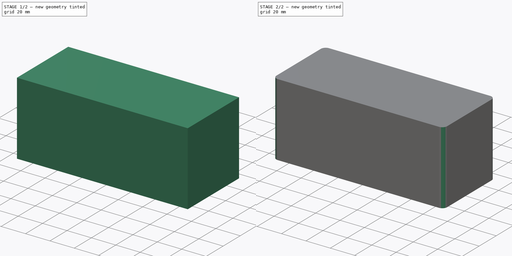
[diagram: build sequence overview — one tinted view per stage of 2, left to right]
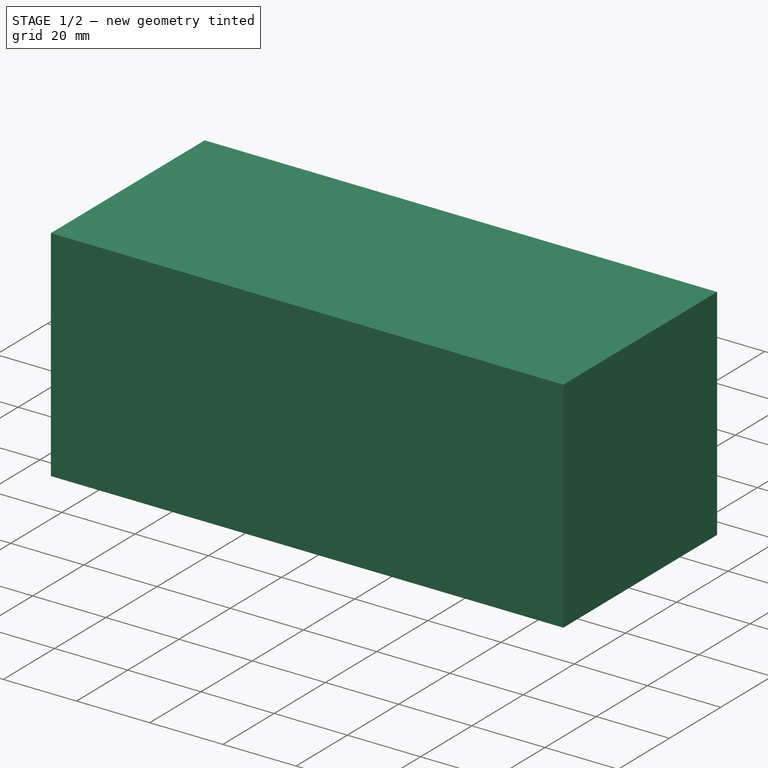
[diagram: stage 1 of 2 — iso view after this stage's code; geometry added in this stage tinted green]
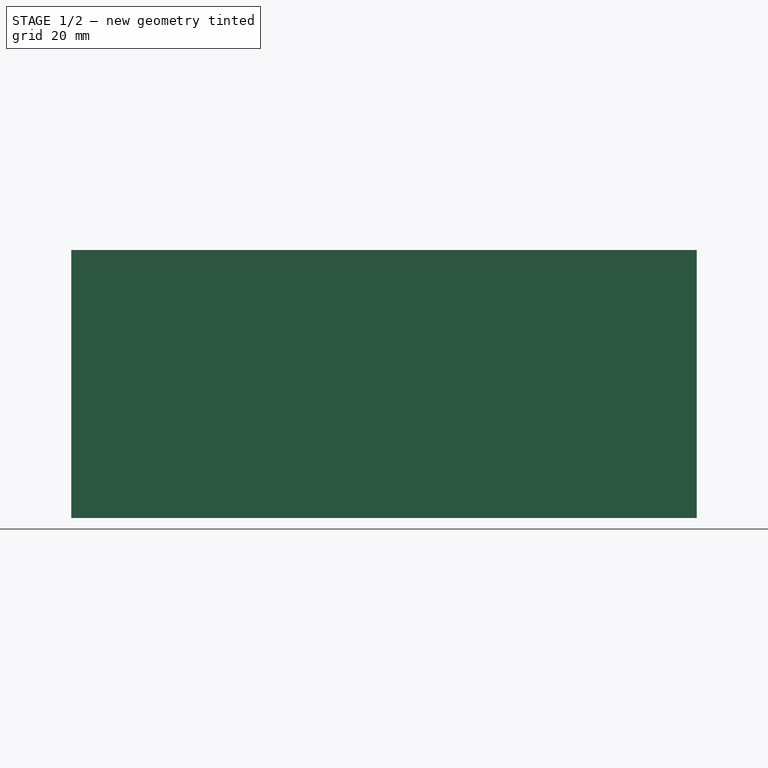
[diagram: stage 1 of 2 — front view after this stage's code; geometry added in this stage tinted green]
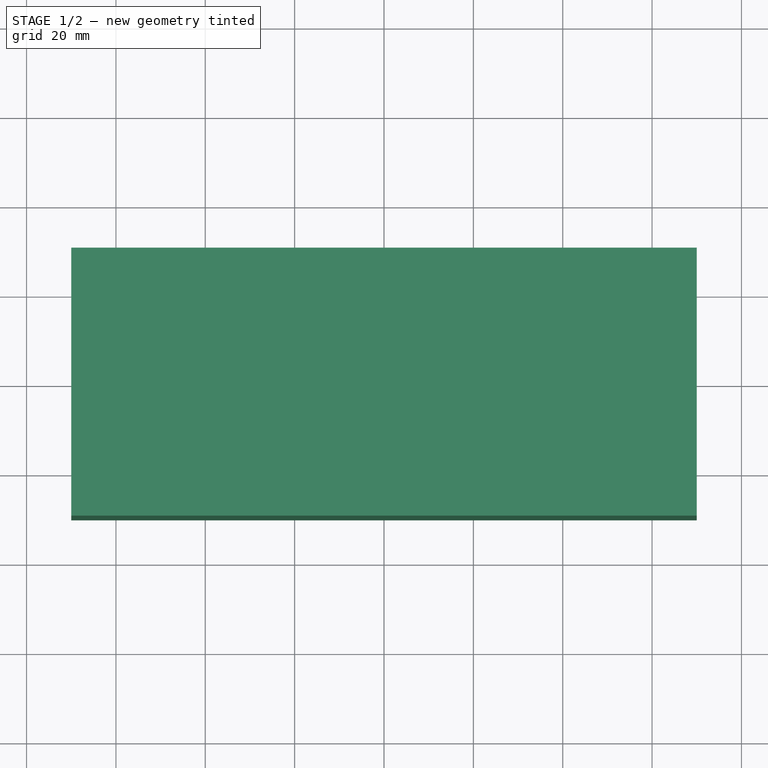
[diagram: stage 1 of 2 — top view after this stage's code; geometry added in this stage tinted green]
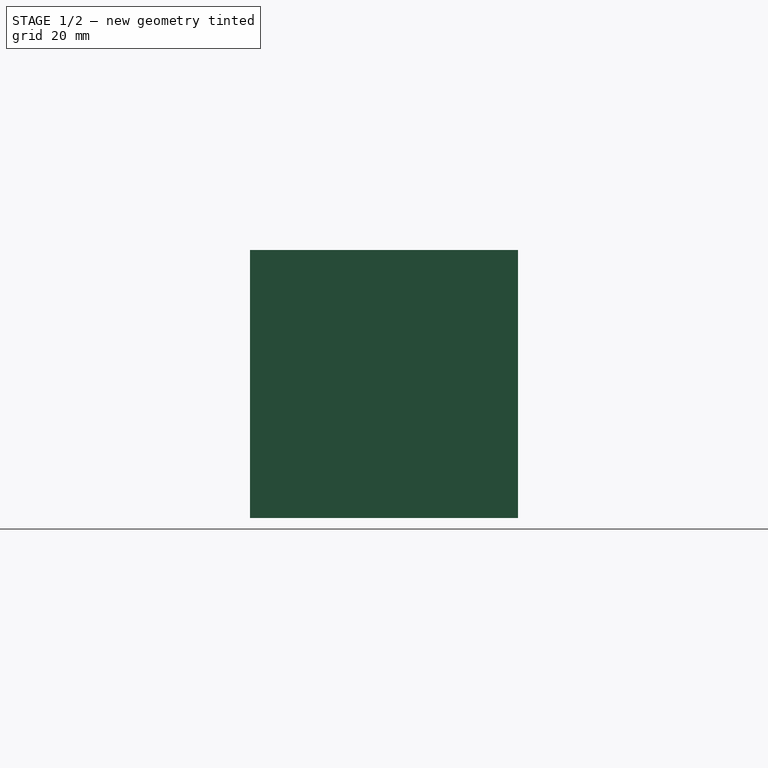
[diagram: stage 1 of 2 — right view after this stage's code; geometry added in this stage tinted green]
FCSTD DOCUMENT  (FreeCAD 0.21R33771 (Git))
Label: containers
License: All rights reserved
LicenseURL: https://en.wikipedia.org/wiki/All_rights_reserved
objects: Sketcher::SketchObject×2, PartDesign::Pad×1, PartDesign::Pocket×1, PartDesign::Fillet×1, PartDesign::Body×1
note: 9 computed .brp shape members not serialized (recipe doc carries the construction recipe); baked Part::Feature solids carry a one-line shape summary decoded from their .brp

FEATURE [Sketcher::SketchObject] Sketch
  FullyConstrained = true
  MapMode = 5
  Support = -> [XY_Plane]
  sketch-geometry (4):
    g0: LineSegment StartX=-70 StartY=30 StartZ=0 EndX=70 EndY=30 EndZ=0
    g1: LineSegment StartX=70 StartY=30 StartZ=0 EndX=70 EndY=-30 EndZ=0
    g2: LineSegment StartX=70 StartY=-30 StartZ=0 EndX=-70 EndY=-30 EndZ=0
    g3: LineSegment StartX=-70 StartY=-30 StartZ=0 EndX=-70 EndY=30 EndZ=0
  constraints (11):
    c: Coincident(g0,g1)
    c: Coincident(g1,g2)
    c: Coincident(g2,g3)
    c: Coincident(g3,g0)
    c: Horizontal(g0)
    c: Horizontal(g2)
    c: Vertical(g1)
    c: Vertical(g3)
    c: DistanceX(g0,g0) = 140
    c: DistanceY(g3,g3) = 60
    c: Symmetric(g2,g0,g-1)
FEATURE [PartDesign::Pad] Pad
  Direction = (0,0,1)
  Length = 60
  Length2 = 10
  Profile = -> Sketch
  ReferenceAxis = -> Sketch [N_Axis]
  Type = 0
FEATURE [Sketcher::SketchObject] Sketch001
  ExternalGeometry = -> [Pad]
  FullyConstrained = true
  MapMode = 5
  Support = -> [XY_Plane]
  sketch-geometry (12):
    g0: LineSegment StartX=-68 StartY=28 StartZ=0 EndX=-6 EndY=28 EndZ=0
    g1: LineSegment StartX=-6 StartY=28 StartZ=0 EndX=-6 EndY=-28 EndZ=0
    g2: LineSegment StartX=-6 StartY=-28 StartZ=0 EndX=-68 EndY=-28 EndZ=0
    g3: LineSegment StartX=-68 StartY=-28 StartZ=0 EndX=-68 EndY=28 EndZ=0
    g4: LineSegment StartX=-4 StartY=28 StartZ=0 EndX=26 EndY=28 EndZ=0
    g5: LineSegment StartX=26 StartY=28 StartZ=0 EndX=26 EndY=-28 EndZ=0
    g6: LineSegment StartX=26 StartY=-28 StartZ=0 EndX=-4 EndY=-28 EndZ=0
    g7: LineSegment StartX=-4 StartY=-28 StartZ=0 EndX=-4 EndY=28 EndZ=0
    g8: LineSegment StartX=28 StartY=28 StartZ=0 EndX=68 EndY=28 EndZ=0
    g9: LineSegment StartX=68 StartY=28 StartZ=0 EndX=68 EndY=-28 EndZ=0
    g10: LineSegment StartX=68 StartY=-28 StartZ=0 EndX=28 EndY=-28 EndZ=0
    g11: LineSegment StartX=28 StartY=-28 StartZ=0 EndX=28 EndY=28 EndZ=0
  constraints (36):
    c: Coincident(g0,g1)
    c: Coincident(g1,g2)
    c: Coincident(g2,g3)
    c: Coincident(g3,g0)
    c: Horizontal(g0)
    c: Horizontal(g2)
    c: Vertical(g1)
    c: Vertical(g3)
    c: Coincident(g4,g5)
    c: Coincident(g5,g6)
    c: Coincident(g6,g7)
    c: Coincident(g7,g4)
    c: Horizontal(g4)
    c: Horizontal(g6)
    c: Vertical(g5)
    c: Vertical(g7)
    c: Coincident(g8,g9)
    c: Coincident(g9,g10)
    c: Coincident(g10,g11)
    c: Coincident(g11,g8)
    c: Horizontal(g8)
    c: Horizontal(g10)
    c: Vertical(g9)
    c: Vertical(g11)
    c: DistanceY(g0,g-4) = 2
    c: DistanceX(g-5,g2) = 2
    c: DistanceY(g-5,g2) = 2
    c: DistanceX(g4,g4) = 30
    c: Horizontal(g0,g4)
    c: Horizontal(g4,g8)
    c: DistanceX(g0,g4) = 2
    c: DistanceX(g4,g8) = 2
    c: Horizontal(g1,g6)
    c: Horizontal(g6,g10)
    c: DistanceX(g8,g8) = 40
    c: DistanceX(g8,g-6) = 2
FEATURE [PartDesign::Pocket] Pocket
  BaseFeature = -> Pad
  Direction = (0,0,-1)
  Length = 57
  Length2 = 5
  Profile = -> Sketch001
  ReferenceAxis = -> Sketch001 [N_Axis]
  Reversed = true
  Type = 0
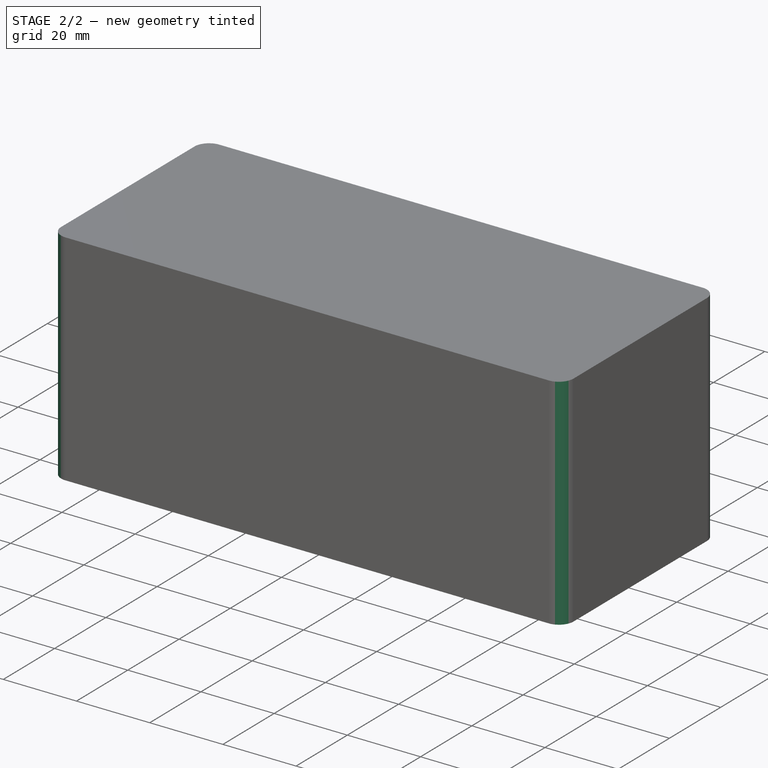
[diagram: stage 2 of 2 — iso view after this stage's code; geometry added in this stage tinted green]
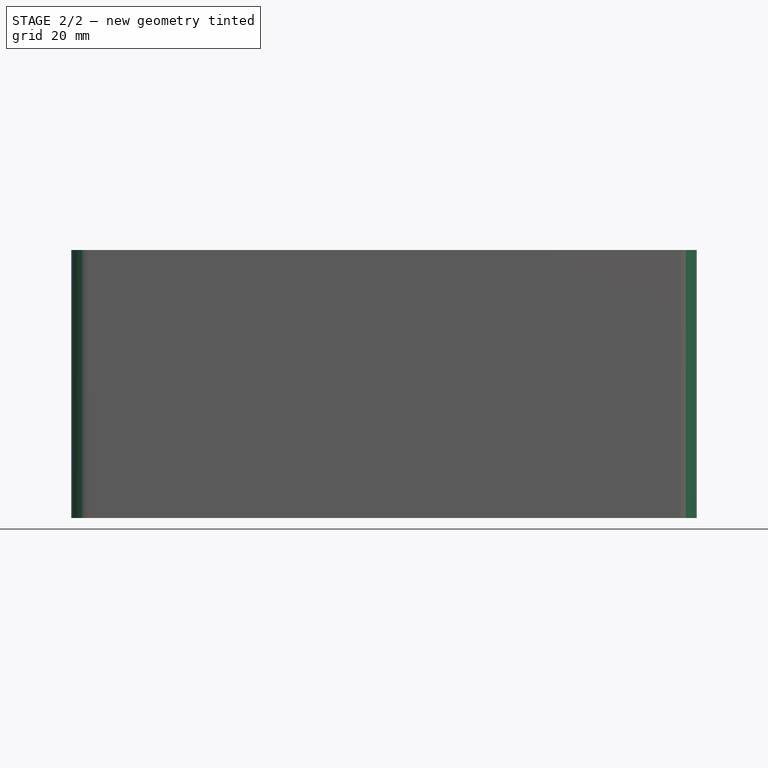
[diagram: stage 2 of 2 — front view after this stage's code; geometry added in this stage tinted green]
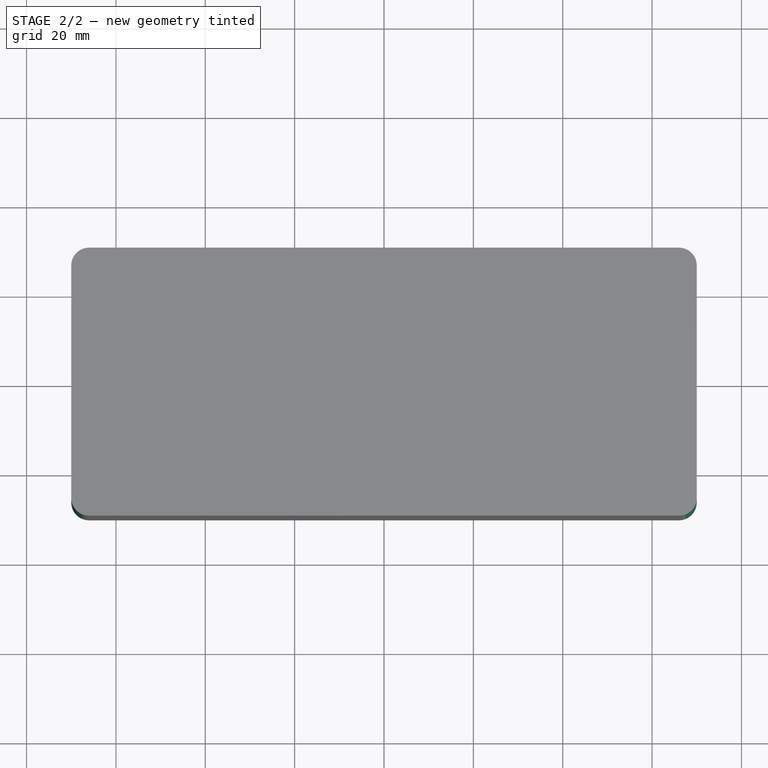
[diagram: stage 2 of 2 — top view after this stage's code; geometry added in this stage tinted green]
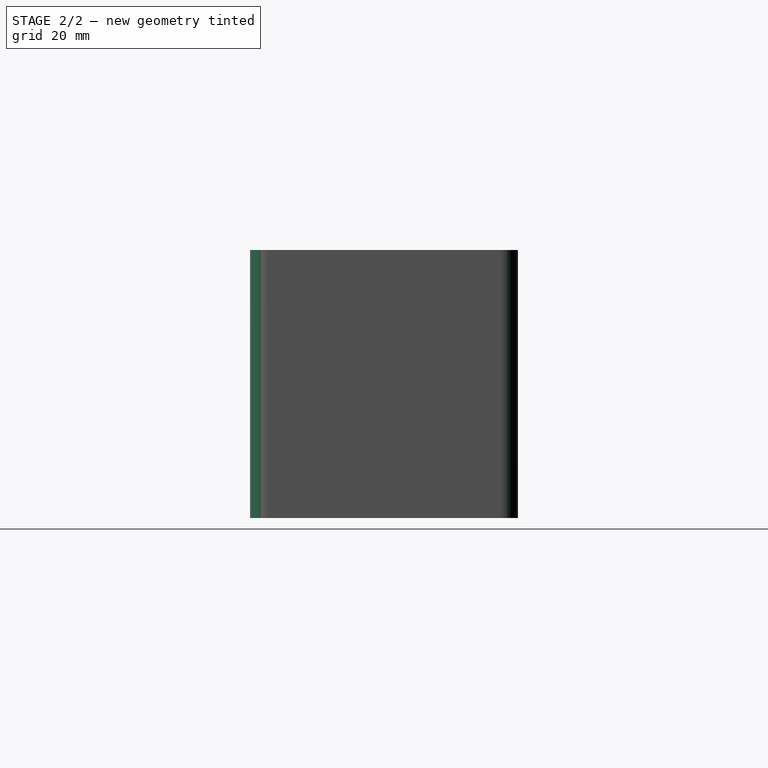
[diagram: stage 2 of 2 — right view after this stage's code; geometry added in this stage tinted green]
FEATURE [PartDesign::Fillet] Fillet
  Base = -> Pocket [Edge26,Edge25,Edge30,Edge38,Edge46,Edge44,Edge41,Edge33,Edge36,Edge28,Edge34,Edge42,Edge1,Edge5,Edge8,Edge2]
  BaseFeature = -> Pocket
  Radius = 4
  SupportTransform = false
  UseAllEdges = false
FEATURE [PartDesign::Body] Body
  Group = -> [Sketch,Pad,Sketch001,Pocket,Fillet]
  Origin = -> Origin
  Tip = -> Fillet
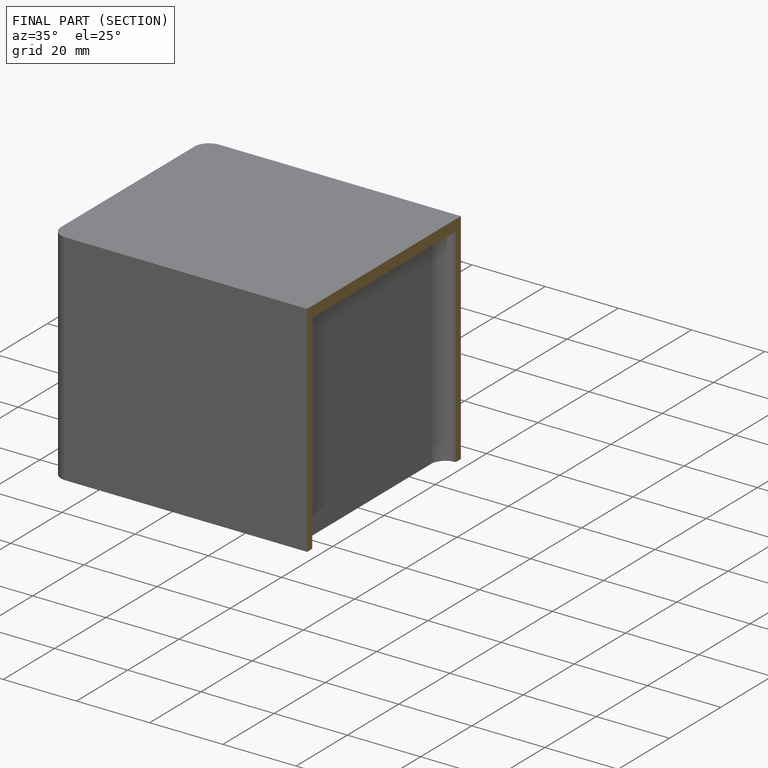
[diagram: finished part — half-section view (interior)]
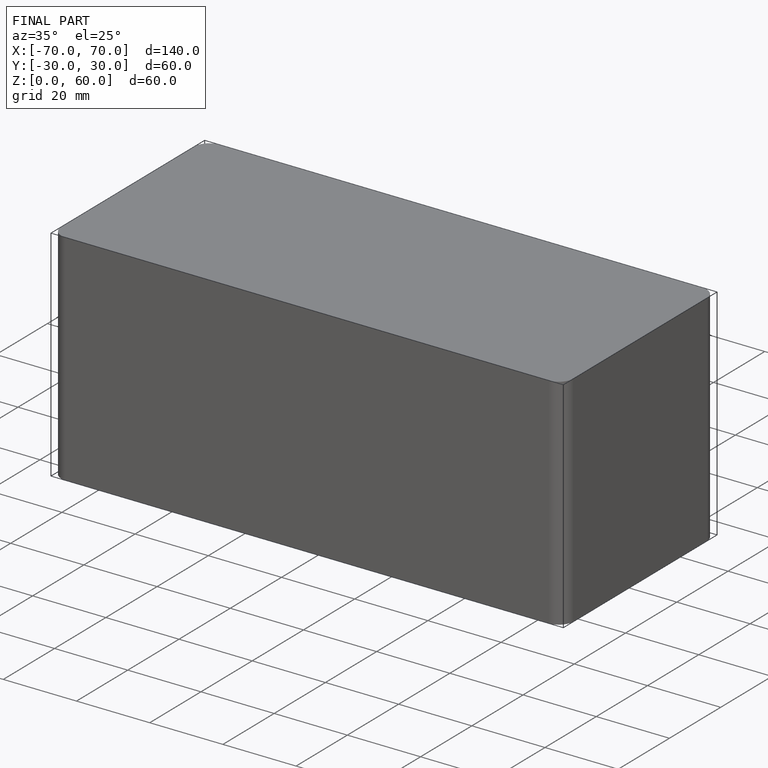
[diagram: finished part — iso view with bounding-box wireframe]
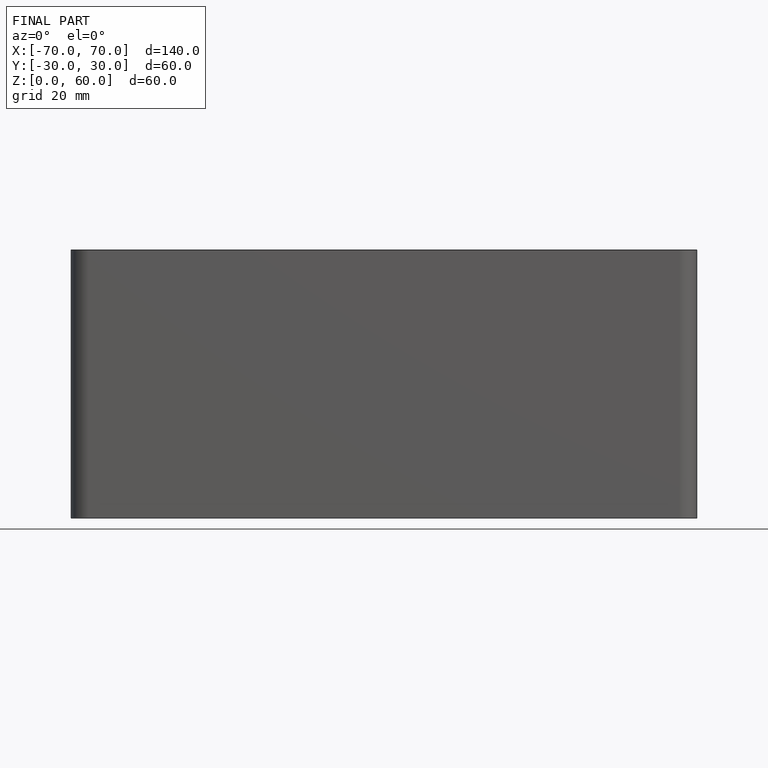
[diagram: finished part — front view with bounding-box wireframe]
